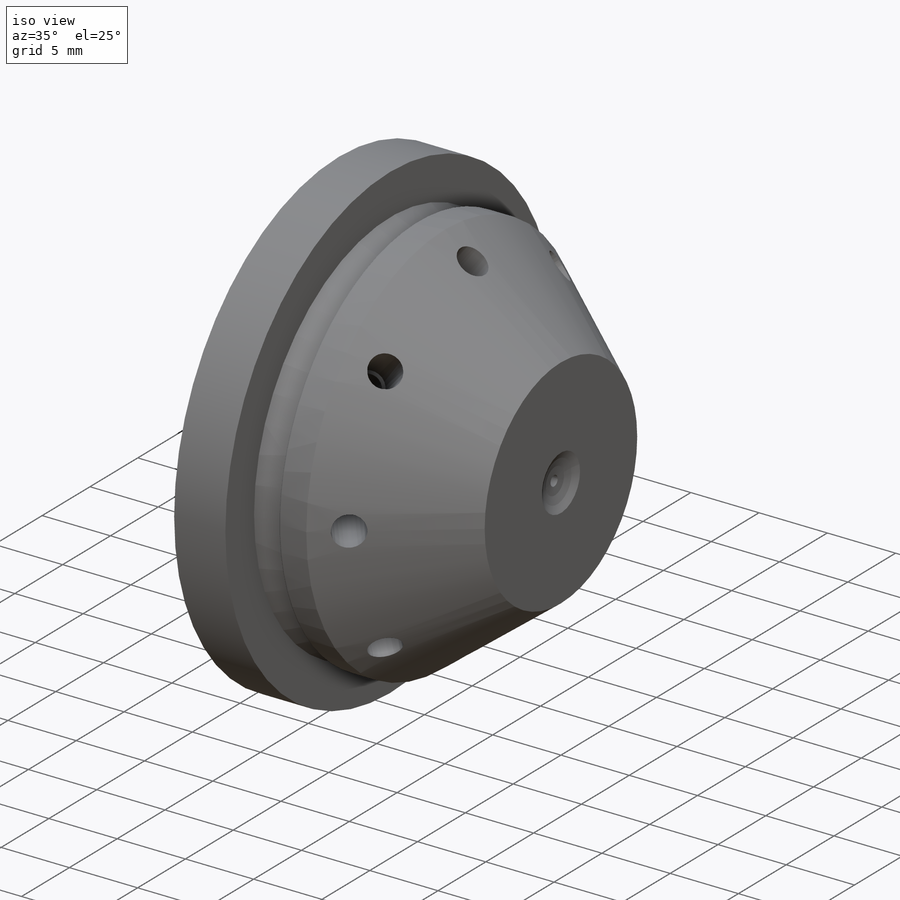
[diagram: iso view]
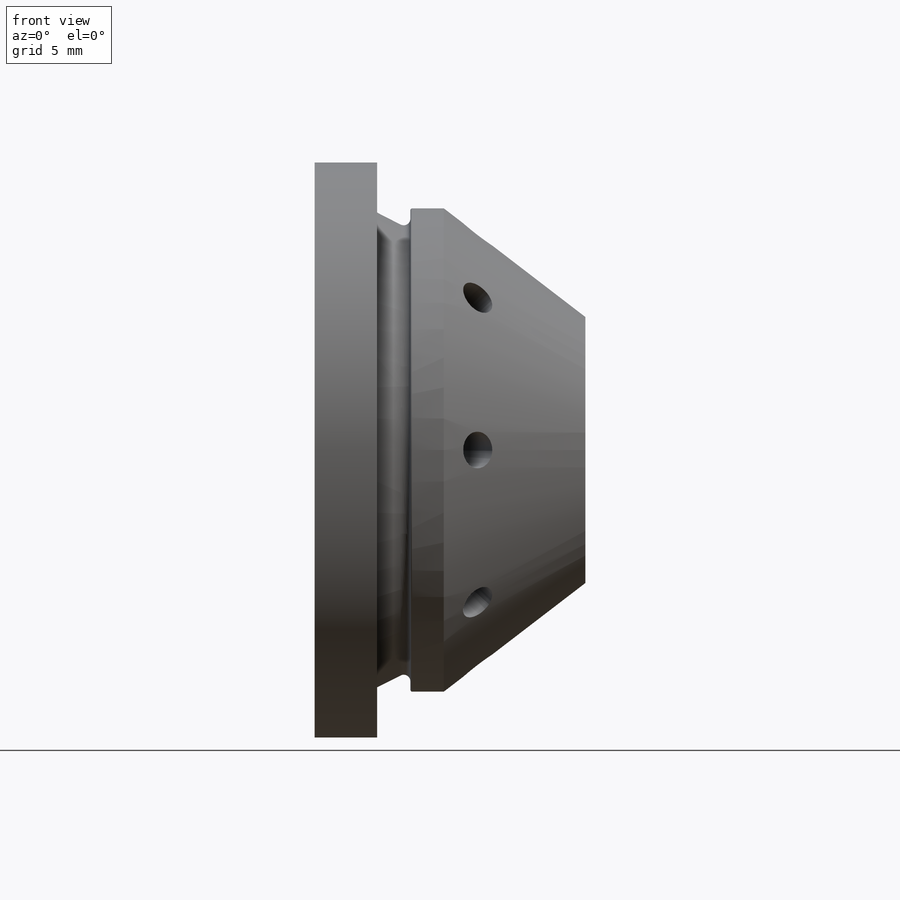
[diagram: front view]
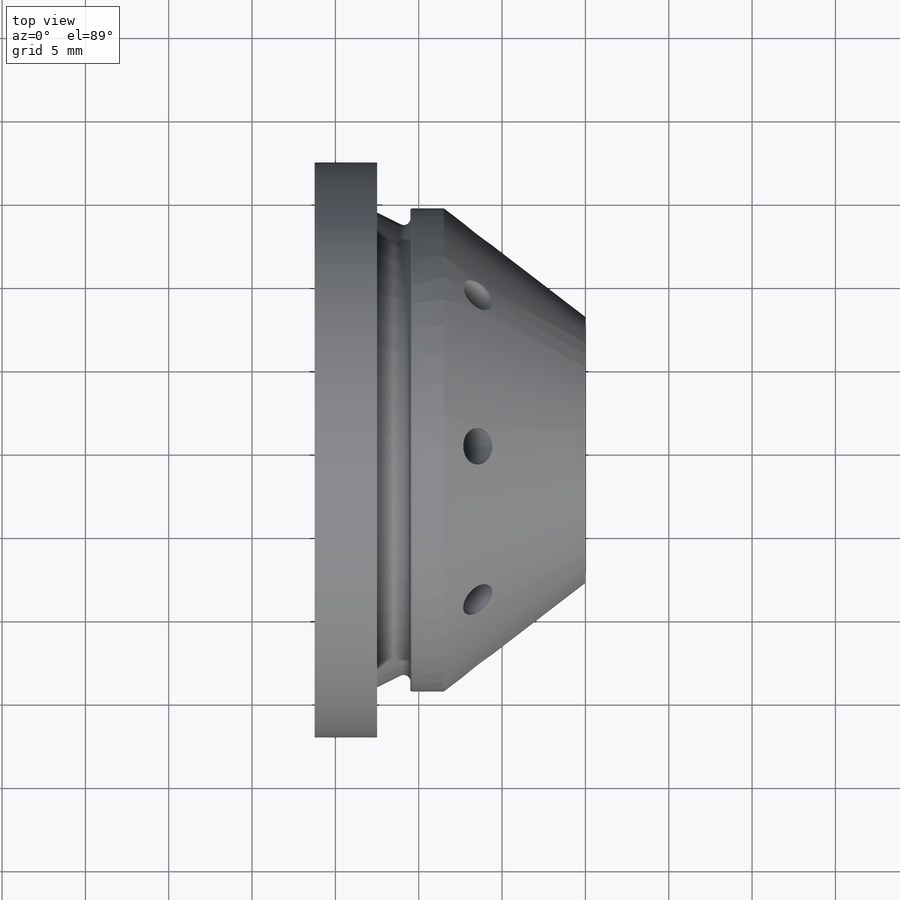
[diagram: top view]
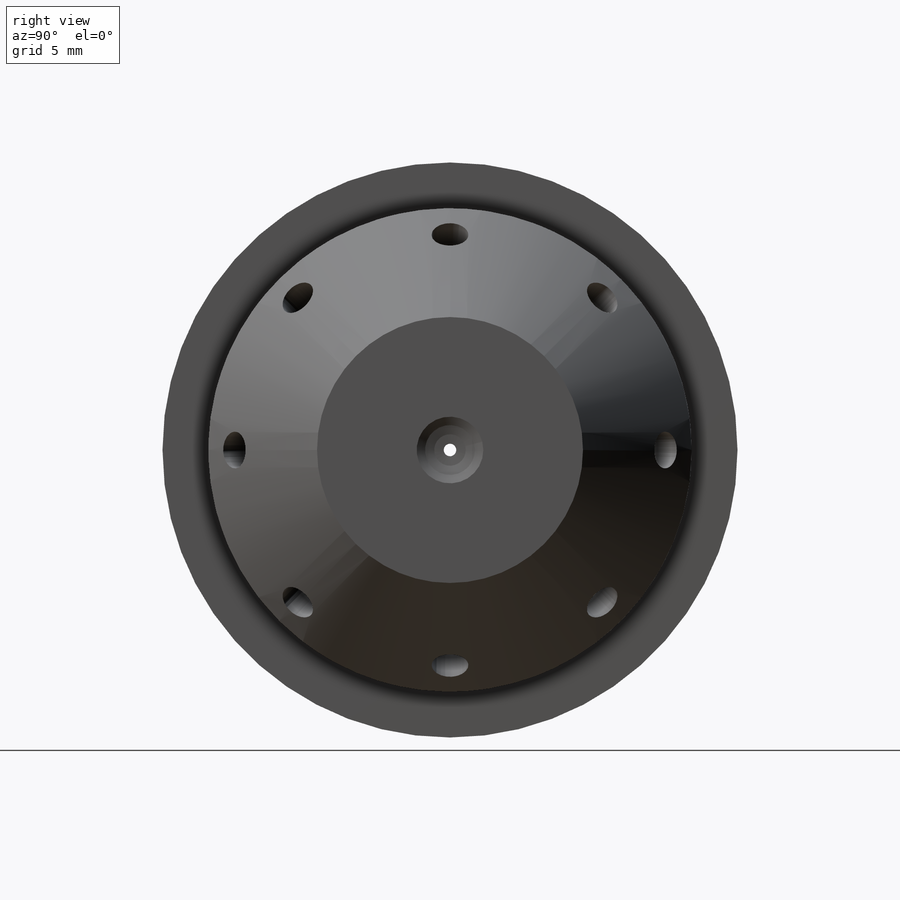
[diagram: right view]
SOLIDWORKS PART (.sldprt)
format: sldprt  version: not decoded by parser v0  size: 432,128 bytes
history: native  units: mm
features: sketch x6, plane x5, hole x2, pattern_circular x2, material x1, revolve x1 (+9 scaffold rows collapsed)
feature tree (26):
  scaffold x9  (default folders/planes/origin — collapsed)
  material  "Material <nicht festgelegt>"
  plane  "Ebene vorne"
  plane  "Ebene oben"
  plane  "Ebene rechts"
  sketch  "Teil"  dims[c1.D20=0.4mm c1.D22=0.1mm c1.D23=0.4mm c1.D24=3.0mm c1.D1=8.5mm c1.D2=25.0mm c1.D3=20.0mm c1.D4=0.75mm c1.D5=10.5mm c1.D6=28.5mm c1.D7=26.5mm c1.D8=29.0mm c1.D9=27.0mm c1.D10=34.5mm c1.D11=16.25mm c2.D9=~8.933784mm c3.D9=~17.92792deg c4.D9=10.5mm c4.D12=15.0mm c4.D2=~8.933784mm c5.D2=~162.07208deg c6.D2=~11.011218mm c7.D2=37.5deg c7.D13=30.5mm c7.D14=~1.509867mm c8.D14=95.0deg c8.D15=1.5mm c8.D16=~4.932315mm c9.D16=~98.743181deg c10.D16=~6.83174mm c11.D16=~81.256819deg c12.D16=~2.702056mm c13.D16=45.0deg c13.D17=3.5mm c13.D18=8.0mm c13.D19=~1.740597mm c14.D19=118.0deg c14.D21=12.5mm c14.D25=4.0mm c14.D26=0.5mm]
  revolve  "Rotation"  Angle=360deg
  plane  "Ebene Fase"
  sketch  "Abstand Bohrung 2.2mm"  dims[D1=13.0mm]
  hole  "Bohrung 2.2mm"  Diameter=1.8mm Depth=22.507373mm
  sketch  "3D-Skizze"
  sketch  "Bemaßung"  dims[Durchmesser=1.8mm Tiefe=~22.507373mm Bohrungsdurchmesser=2.2mm Bohrungstiefe=6.0mm Spitzenwinkel=118.0deg Bohrungswinkel=118.0deg]
  pattern_circular  "8 x Bohrung 2.2mm"  Count=8 Angle=45deg
  plane  "Ebene Rückseite"
  sketch  "Abstand Bohrung 1.2mm"  dims[D1=6.5mm]
  hole  "Ø1.5 (1.5) Durchmesser Bohrung1"  [1 undecoded]
  pattern_circular  "3D-Skizze2"  [2 undecoded]
  sketch  "Bemaßung2"  dims[hole-wizard template sketch: 59 standard entries collapsed; hole parameters kept: c18.Bohrerdurchmesser=1.5mm c18.Bohrungstiefe=~5.889216mm]
decode coverage: 8 of 11 modeling features carry decoded parameters
note: ~ marks probable driven/reference dimensions
note: 3 parameter values undecoded
note: suppression state not decoded; provenance and decode notes live in map.json
